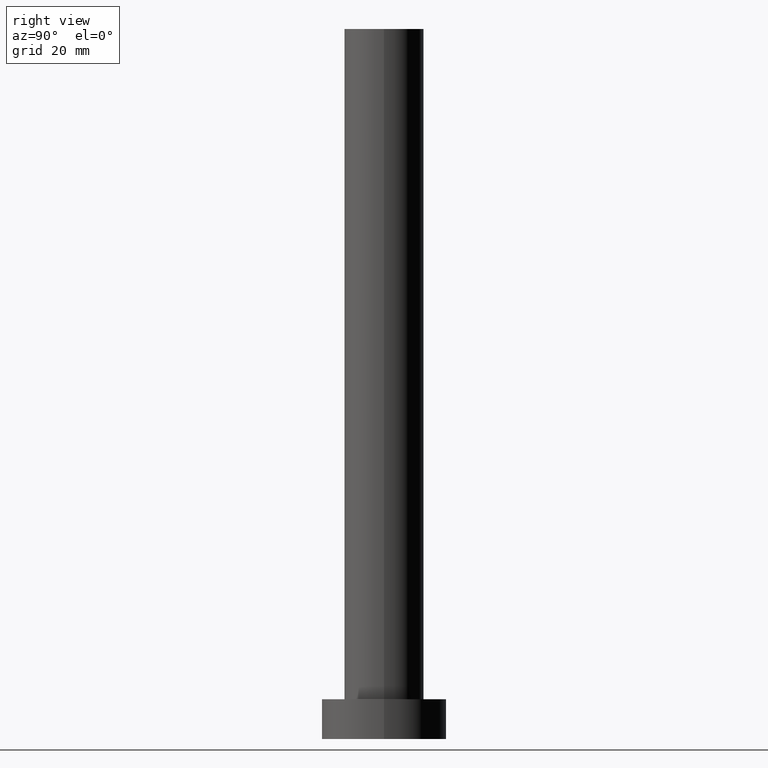
[diagram: clean part render]
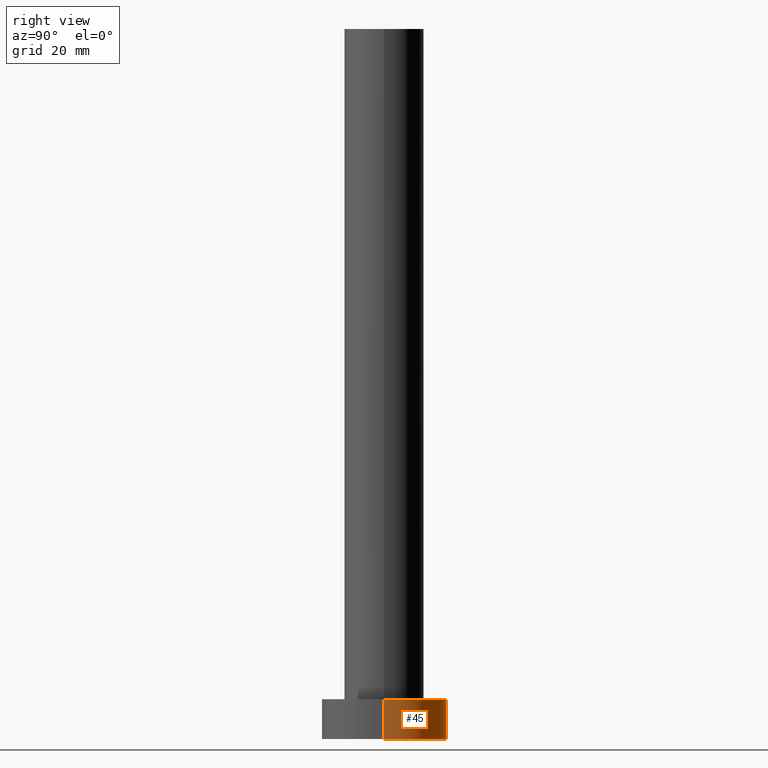
[diagram: same view with one face highlighted and labeled with its STEP entity id]
A machine part, right view. The second image highlights one B-rep face of the part: STEP entity #45.
In plain terms, the highlighted cylindrical surface (partial cylindrical patch) has radius 11 mm, axis along (-0, -0, -1).
Its self-contained STEP definition (entity closure, byte-faithful):
#6 = DIRECTION ( 'NONE',  ( 0.000000000000000000, 0.000000000000000000, 1.000000000000000000 ) ) ;
#19 = DIRECTION ( 'NONE',  ( 1.000000000000000000, 0.000000000000000000, 0.000000000000000000 ) ) ;
#23 = DIRECTION ( 'NONE',  ( 0.000000000000000000, 0.000000000000000000, 1.000000000000000000 ) ) ;
#29 = CARTESIAN_POINT ( 'NONE',  ( -11.00000000000000000, 0.000000000000000000, 7.000000000000000000 ) ) ;
#33 = CYLINDRICAL_SURFACE ( 'NONE', #195, 11.00000000000000000 ) ;
#36 = ORIENTED_EDGE ( 'NONE', *, *, #184, .T. ) ;
#42 = CIRCLE ( 'NONE', #190, 11.00000000000000000 ) ;
#45 = ADVANCED_FACE ( 'NONE', ( #108 ), #33, .T. ) ;
#48 = DIRECTION ( 'NONE',  ( -0.000000000000000000, -0.000000000000000000, -1.000000000000000000 ) ) ;
#63 = VECTOR ( 'NONE', #145, 1000.000000000000000 ) ;
#69 = ORIENTED_EDGE ( 'NONE', *, *, #71, .F. ) ;
#71 = EDGE_CURVE ( 'NONE', #208, #226, #247, .T. ) ;
#104 = DIRECTION ( 'NONE',  ( -1.000000000000000000, 0.000000000000000000, 0.000000000000000000 ) ) ;
#108 = FACE_OUTER_BOUND ( 'NONE', #228, .T. ) ;
#111 = CARTESIAN_POINT ( 'NONE',  ( 0.000000000000000000, 0.000000000000000000, 0.000000000000000000 ) ) ;
#121 = CIRCLE ( 'NONE', #219, 11.00000000000000000 ) ;
#131 = CARTESIAN_POINT ( 'NONE',  ( 11.00000000000000000, 1.347111479062088405E-15, 7.000000000000000000 ) ) ;
#145 = DIRECTION ( 'NONE',  ( -0.000000000000000000, -0.000000000000000000, -1.000000000000000000 ) ) ;
#153 = LINE ( 'NONE', #131, #174 ) ;
#156 = CARTESIAN_POINT ( 'NONE',  ( 11.00000000000000000, 1.347111479062088405E-15, 7.000000000000000000 ) ) ;
#164 = EDGE_CURVE ( 'NONE', #201, #215, #153, .T. ) ;
#174 = VECTOR ( 'NONE', #235, 1000.000000000000000 ) ;
#178 = CARTESIAN_POINT ( 'NONE',  ( 0.000000000000000000, 0.000000000000000000, 7.000000000000000000 ) ) ;
#179 = ORIENTED_EDGE ( 'NONE', *, *, #244, .F. ) ;
#184 = EDGE_CURVE ( 'NONE', #215, #226, #42, .T. ) ;
#186 = ORIENTED_EDGE ( 'NONE', *, *, #164, .T. ) ;
#190 = AXIS2_PLACEMENT_3D ( 'NONE', #111, #23, #19 ) ;
#193 = CARTESIAN_POINT ( 'NONE',  ( 0.000000000000000000, 0.000000000000000000, 7.000000000000000000 ) ) ;
#195 = AXIS2_PLACEMENT_3D ( 'NONE', #193, #48, #104 ) ;
#201 = VERTEX_POINT ( 'NONE', #156 ) ;
#203 = CARTESIAN_POINT ( 'NONE',  ( -11.00000000000000000, 0.000000000000000000, 0.000000000000000000 ) ) ;
#208 = VERTEX_POINT ( 'NONE', #29 ) ;
#215 = VERTEX_POINT ( 'NONE', #221 ) ;
#219 = AXIS2_PLACEMENT_3D ( 'NONE', #178, #6, #243 ) ;
#221 = CARTESIAN_POINT ( 'NONE',  ( 11.00000000000000000, 1.347111479062088405E-15, 0.000000000000000000 ) ) ;
#226 = VERTEX_POINT ( 'NONE', #203 ) ;
#228 = EDGE_LOOP ( 'NONE', ( #179, #186, #36, #69 ) ) ;
#235 = DIRECTION ( 'NONE',  ( -0.000000000000000000, -0.000000000000000000, -1.000000000000000000 ) ) ;
#243 = DIRECTION ( 'NONE',  ( 1.000000000000000000, 0.000000000000000000, 0.000000000000000000 ) ) ;
#244 = EDGE_CURVE ( 'NONE', #201, #208, #121, .T. ) ;
#245 = CARTESIAN_POINT ( 'NONE',  ( -11.00000000000000000, 0.000000000000000000, 7.000000000000000000 ) ) ;
#247 = LINE ( 'NONE', #245, #63 ) ;